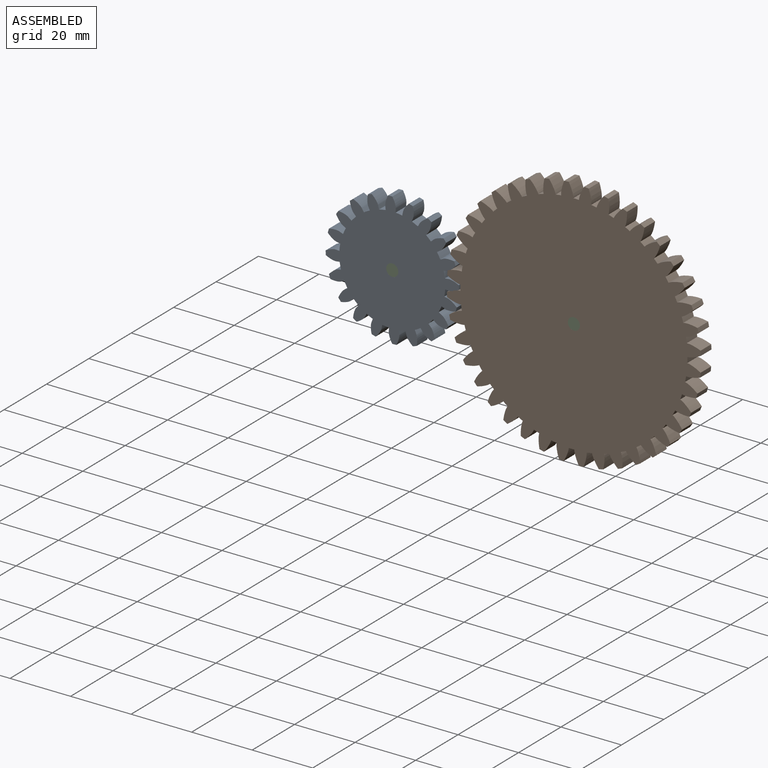
[diagram: assembled view]
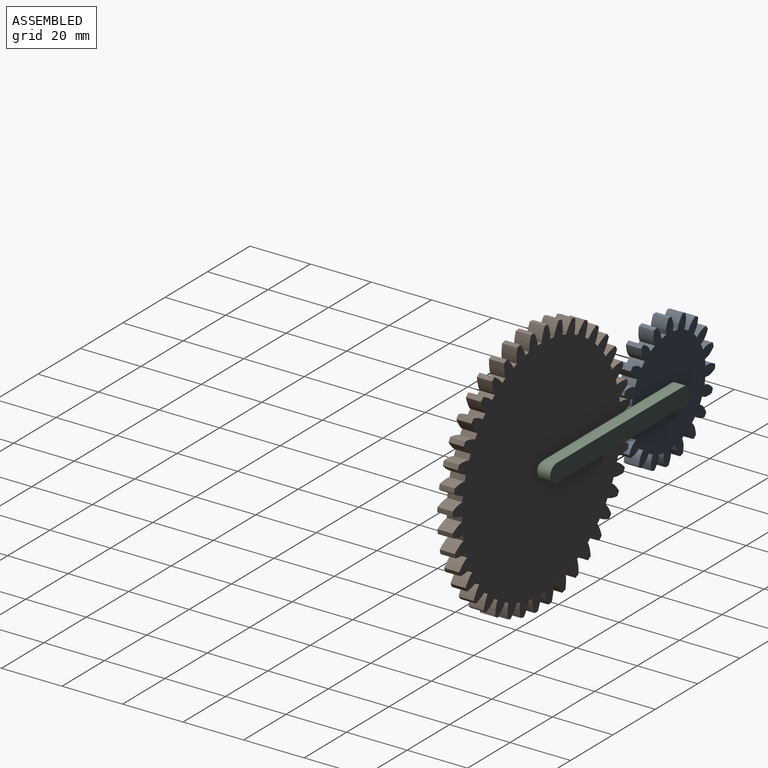
[diagram: assembled view, second angle]
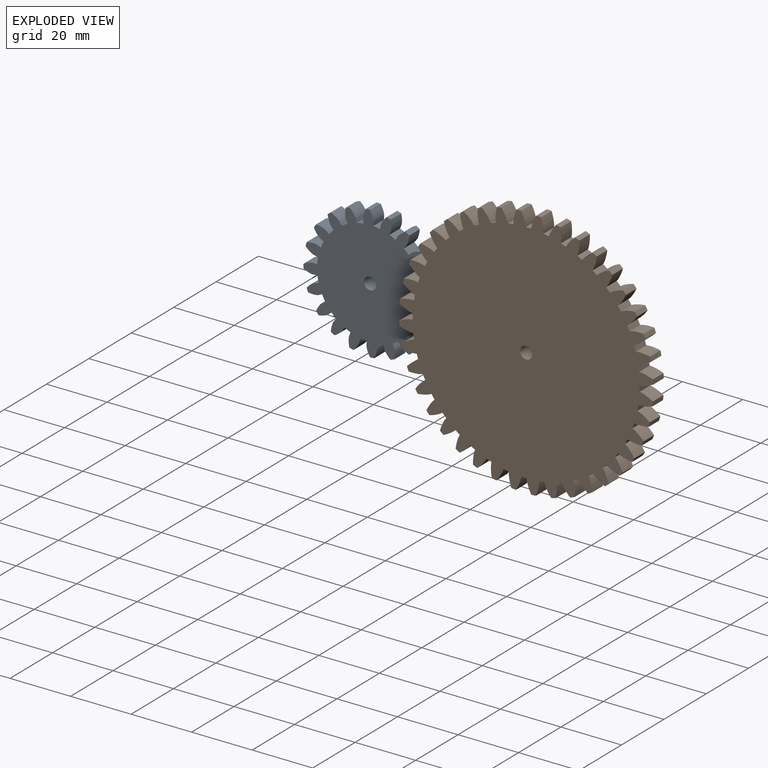
[diagram: exploded view]
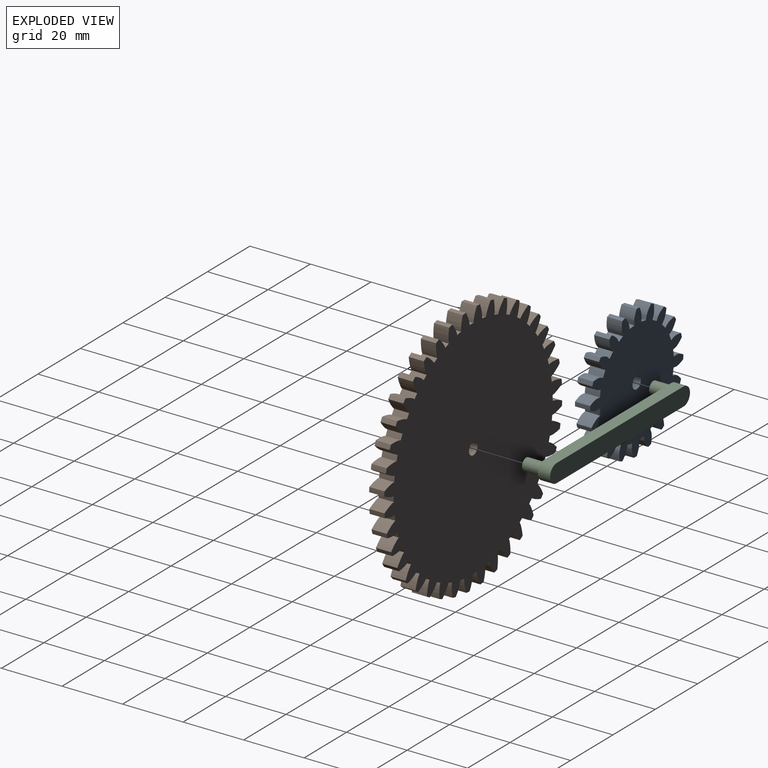
[diagram: exploded view, second angle]
ASSEMBLY  parts=3 mates=2
PART A: 83 faces, bbox 43.7x5x43.7 mm
  f0: cylinder r=22mm len=5mm, axis (0,1,0), area 6.9mm2, adj f21,f22,f50,f82
  f1: cylinder r=22mm len=5mm, axis (0,1,0), area 6.9mm2, adj f21,f22,f79,f80
  f2: cylinder r=22mm len=5mm, axis (0,1,0), area 6.9mm2, adj f21,f22,f71,f76
  f3: cylinder r=22mm len=5mm, axis (0,1,0), area 6.9mm2, adj f21,f22,f73,f77
  f4: cylinder r=22mm len=5mm, axis (0,1,0), area 6.9mm2, adj f21,f22,f65,f70
  f5: cylinder r=22mm len=5mm, axis (0,1,0), area 6.9mm2, adj f21,f22,f67,f74
  f6: cylinder r=22mm len=5mm, axis (0,1,0), area 6.9mm2, adj f21,f22,f64,f68
  f7: cylinder r=22mm len=5mm, axis (0,1,0), area 6.9mm2, adj f21,f22,f61,f62
  f8: cylinder r=22mm len=5mm, axis (0,1,0), area 6.9mm2, adj f21,f22,f38,f58
  f9: cylinder r=22mm len=5mm, axis (0,1,0), area 6.9mm2, adj f21,f22,f55,f56
  f10: cylinder r=22mm len=5mm, axis (0,1,0), area 6.9mm2, adj f21,f22,f47,f52
  f11: cylinder r=22mm len=5mm, axis (0,1,0), area 6.9mm2, adj f21,f22,f49,f53
  f12: cylinder r=22mm len=5mm, axis (0,1,0), area 6.9mm2, adj f21,f22,f41,f46
  f13: cylinder r=22mm len=5mm, axis (0,1,0), area 6.9mm2, adj f21,f22,f23,f43
  f14: cylinder r=22mm len=5mm, axis (0,1,0), area 6.9mm2, adj f21,f22,f35,f40
  f15: cylinder r=22mm len=5mm, axis (0,1,0), area 6.9mm2, adj f21,f22,f37,f44
  f16: cylinder r=22mm len=5mm, axis (0,1,0), area 6.9mm2, adj f21,f22,f26,f34
  f17: cylinder r=22mm len=5mm, axis (0,1,0), area 6.9mm2, adj f21,f22,f31,f59
  f18: cylinder r=22mm len=5mm, axis (0,1,0), area 6.9mm2, adj f21,f22,f28,f29
  f19: cylinder r=2mm len=5mm, axis (0,1,0), area 62.8mm2, adj f21,f22
  f20: cylinder r=22mm len=5mm, axis (0,1,0), area 6.9mm2, adj f21,f22,f25,f32
  f21: plane 43.74x43.74mm, normal (0,-1,0), area 1213.6mm2, adj f0,f1,f2,f3,f4,f5,f6,f7
  f22: plane 43.74x43.74mm, normal (0,1,0), area 1213.6mm2, adj f0,f1,f2,f3,f4,f5,f6,f7
  f23: extruded ~5x4.36mm, area 24mm2, adj f13,f21,f22,f24
  f24: cylinder r=17.5mm len=5mm, axis (0,1,0), area 11.1mm2, adj f21,f22,f23,f25
  f25: extruded ~5x4.36mm, area 24mm2, adj f20,f21,f22,f24
  f26: extruded ~5x4.49mm, area 24mm2, adj f16,f21,f22,f27
  f27: cylinder r=17.5mm len=5mm, axis (0,1,0), area 11.1mm2, adj f21,f22,f26,f28
  f28: extruded ~5x3.89mm, area 24mm2, adj f18,f21,f22,f27
  f29: extruded ~5x3.89mm, area 24mm2, adj f18,f21,f22,f30
  f30: cylinder r=17.5mm len=5mm, axis (0,1,0), area 11.1mm2, adj f21,f22,f29,f31
  f31: extruded ~5x4.49mm, area 24mm2, adj f17,f21,f22,f30
  f32: extruded ~5x4.66mm, area 24mm2, adj f20,f21,f22,f33
  f33: cylinder r=17.5mm len=5mm, axis (0,1,0), area 11.1mm2, adj f21,f22,f32,f34
  f34: extruded ~5x3.64mm, area 24mm2, adj f16,f21,f22,f33
  f35: extruded ~5x4.49mm, area 24mm2, adj f14,f21,f22,f36
  f36: cylinder r=17.5mm len=5mm, axis (0,1,0), area 11.1mm2, adj f21,f22,f35,f37
  f37: extruded ~5x3.89mm, area 24mm2, adj f15,f21,f22,f36
  f38: extruded ~5x4.66mm, area 24mm2, adj f8,f21,f22,f39
  f39: cylinder r=17.5mm len=5mm, axis (0,1,0), area 11.1mm2, adj f21,f22,f38,f40
  f40: extruded ~5x3.64mm, area 24mm2, adj f14,f21,f22,f39
  f41: extruded ~5x3.64mm, area 24mm2, adj f12,f21,f22,f42
  f42: cylinder r=17.5mm len=5mm, axis (0,1,0), area 11.1mm2, adj f21,f22,f41,f43
  f43: extruded ~5x4.66mm, area 24mm2, adj f13,f21,f22,f42
  f44: extruded ~5x3.89mm, area 24mm2, adj f15,f21,f22,f45
  f45: cylinder r=17.5mm len=5mm, axis (0,1,0), area 11.1mm2, adj f21,f22,f44,f46
  f46: extruded ~5x4.49mm, area 24mm2, adj f12,f21,f22,f45
  f47: extruded ~5x3.89mm, area 24mm2, adj f10,f21,f22,f48
  f48: cylinder r=17.5mm len=5mm, axis (0,1,0), area 11.1mm2, adj f21,f22,f47,f49
  f49: extruded ~5x4.49mm, area 24mm2, adj f11,f21,f22,f48
  f50: extruded ~5x4.49mm, area 24mm2, adj f0,f21,f22,f51
  f51: cylinder r=17.5mm len=5mm, axis (0,1,0), area 11.1mm2, adj f21,f22,f50,f52
  f52: extruded ~5x3.89mm, area 24mm2, adj f10,f21,f22,f51
  f53: extruded ~5x3.64mm, area 24mm2, adj f11,f21,f22,f54
  f54: cylinder r=17.5mm len=5mm, axis (0,1,0), area 11.1mm2, adj f21,f22,f53,f55
  f55: extruded ~5x4.66mm, area 24mm2, adj f9,f21,f22,f54
  f56: extruded ~5x4.36mm, area 24mm2, adj f9,f21,f22,f57
  f57: cylinder r=17.5mm len=5mm, axis (0,1,0), area 11.1mm2, adj f21,f22,f56,f58
  f58: extruded ~5x4.36mm, area 24mm2, adj f8,f21,f22,f57
  f59: extruded ~5x3.64mm, area 24mm2, adj f17,f21,f22,f60
  f60: cylinder r=17.5mm len=5mm, axis (0,1,0), area 11.1mm2, adj f21,f22,f59,f61
  f61: extruded ~5x4.66mm, area 24mm2, adj f7,f21,f22,f60
  f62: extruded ~5x4.36mm, area 24mm2, adj f7,f21,f22,f63
  f63: cylinder r=17.5mm len=5mm, axis (0,1,0), area 11.1mm2, adj f21,f22,f62,f64
  f64: extruded ~5x4.36mm, area 24mm2, adj f6,f21,f22,f63
  f65: extruded ~5x4.49mm, area 24mm2, adj f4,f21,f22,f66
  f66: cylinder r=17.5mm len=5mm, axis (0,1,0), area 11.1mm2, adj f21,f22,f65,f67
  f67: extruded ~5x3.89mm, area 24mm2, adj f5,f21,f22,f66
  f68: extruded ~5x4.66mm, area 24mm2, adj f6,f21,f22,f69
  f69: cylinder r=17.5mm len=5mm, axis (0,1,0), area 11.1mm2, adj f21,f22,f68,f70
  f70: extruded ~5x3.64mm, area 24mm2, adj f4,f21,f22,f69
  f71: extruded ~5x3.64mm, area 24mm2, adj f2,f21,f22,f72
  f72: cylinder r=17.5mm len=5mm, axis (0,1,0), area 11.1mm2, adj f21,f22,f71,f73
  f73: extruded ~5x4.66mm, area 24mm2, adj f3,f21,f22,f72
  f74: extruded ~5x3.89mm, area 24mm2, adj f5,f21,f22,f75
  f75: cylinder r=17.5mm len=5mm, axis (0,1,0), area 11.1mm2, adj f21,f22,f74,f76
  f76: extruded ~5x4.49mm, area 24mm2, adj f2,f21,f22,f75
  f77: extruded ~5x4.36mm, area 24mm2, adj f3,f21,f22,f78
  f78: cylinder r=17.5mm len=5mm, axis (0,1,0), area 11.1mm2, adj f21,f22,f77,f79
  f79: extruded ~5x4.36mm, area 24mm2, adj f1,f21,f22,f78
  f80: extruded ~5x4.66mm, area 24mm2, adj f1,f21,f22,f81
  f81: cylinder r=17.5mm len=5mm, axis (0,1,0), area 11.1mm2, adj f21,f22,f80,f82
  f82: extruded ~5x3.64mm, area 24mm2, adj f0,f21,f22,f81
PART B: 163 faces, bbox 83.8x5x83.8 mm
  f0: cylinder r=42mm len=5mm, axis (0,1,0), area 7.6mm2, adj f41,f42,f106,f162
  f1: cylinder r=42mm len=5mm, axis (0,1,0), area 7.6mm2, adj f41,f42,f159,f160
  f2: cylinder r=42mm len=5mm, axis (0,1,0), area 7.6mm2, adj f41,f42,f156,f157
  f3: cylinder r=42mm len=5mm, axis (0,1,0), area 7.6mm2, adj f41,f42,f153,f154
  f4: cylinder r=42mm len=5mm, axis (0,1,0), area 7.6mm2, adj f41,f42,f150,f151
  f5: cylinder r=42mm len=5mm, axis (0,1,0), area 7.6mm2, adj f41,f42,f147,f148
  f6: cylinder r=42mm len=5mm, axis (0,1,0), area 7.6mm2, adj f41,f42,f139,f144
  f7: cylinder r=42mm len=5mm, axis (0,1,0), area 7.6mm2, adj f41,f42,f141,f145
  f8: cylinder r=42mm len=5mm, axis (0,1,0), area 7.6mm2, adj f41,f42,f133,f138
  f9: cylinder r=42mm len=5mm, axis (0,1,0), area 7.6mm2, adj f41,f42,f127,f135
  f10: cylinder r=42mm len=5mm, axis (0,1,0), area 7.6mm2, adj f41,f42,f132,f142
  f11: cylinder r=42mm len=5mm, axis (0,1,0), area 7.6mm2, adj f41,f42,f129,f130
  f12: cylinder r=42mm len=5mm, axis (0,1,0), area 7.6mm2, adj f41,f42,f126,f136
  f13: cylinder r=42mm len=5mm, axis (0,1,0), area 7.6mm2, adj f41,f42,f123,f124
  f14: cylinder r=42mm len=5mm, axis (0,1,0), area 7.6mm2, adj f41,f42,f120,f121
  f15: cylinder r=42mm len=5mm, axis (0,1,0), area 7.6mm2, adj f41,f42,f117,f118
  f16: cylinder r=42mm len=5mm, axis (0,1,0), area 7.6mm2, adj f41,f42,f109,f114
  f17: cylinder r=42mm len=5mm, axis (0,1,0), area 7.6mm2, adj f41,f42,f100,f111
  f18: cylinder r=42mm len=5mm, axis (0,1,0), area 7.6mm2, adj f41,f42,f103,f108
  f19: cylinder r=42mm len=5mm, axis (0,1,0), area 7.6mm2, adj f41,f42,f105,f112
  f20: cylinder r=42mm len=5mm, axis (0,1,0), area 7.6mm2, adj f41,f42,f97,f102
  f21: cylinder r=42mm len=5mm, axis (0,1,0), area 7.6mm2, adj f41,f42,f94,f99
  f22: cylinder r=42mm len=5mm, axis (0,1,0), area 7.6mm2, adj f41,f42,f91,f96
  f23: cylinder r=42mm len=5mm, axis (0,1,0), area 7.6mm2, adj f41,f42,f76,f93
  f24: cylinder r=42mm len=5mm, axis (0,1,0), area 7.6mm2, adj f41,f42,f43,f90
  f25: cylinder r=42mm len=5mm, axis (0,1,0), area 7.6mm2, adj f41,f42,f87,f88
  f26: cylinder r=42mm len=5mm, axis (0,1,0), area 7.6mm2, adj f41,f42,f79,f84
  f27: cylinder r=42mm len=5mm, axis (0,1,0), area 7.6mm2, adj f41,f42,f81,f85
  f28: cylinder r=42mm len=5mm, axis (0,1,0), area 7.6mm2, adj f41,f42,f73,f78
  f29: cylinder r=42mm len=5mm, axis (0,1,0), area 7.6mm2, adj f41,f42,f67,f75
  f30: cylinder r=42mm len=5mm, axis (0,1,0), area 7.6mm2, adj f41,f42,f72,f82
  f31: cylinder r=42mm len=5mm, axis (0,1,0), area 7.6mm2, adj f41,f42,f69,f70
  f32: cylinder r=42mm len=5mm, axis (0,1,0), area 7.6mm2, adj f41,f42,f61,f66
  f33: cylinder r=42mm len=5mm, axis (0,1,0), area 7.6mm2, adj f41,f42,f58,f63
  f34: cylinder r=42mm len=5mm, axis (0,1,0), area 7.6mm2, adj f41,f42,f49,f60
  f35: cylinder r=42mm len=5mm, axis (0,1,0), area 7.6mm2, adj f41,f42,f52,f57
  f36: cylinder r=42mm len=5mm, axis (0,1,0), area 7.6mm2, adj f41,f42,f54,f115
  f37: cylinder r=42mm len=5mm, axis (0,1,0), area 7.6mm2, adj f41,f42,f46,f51
  f38: cylinder r=42mm len=5mm, axis (0,1,0), area 7.6mm2, adj f41,f42,f48,f55
  f39: cylinder r=2mm len=5mm, axis (0,1,0), area 62.8mm2, adj f41,f42
  f40: cylinder r=42mm len=5mm, axis (0,1,0), area 7.6mm2, adj f41,f42,f45,f64
  f41: plane 83.85x83.85mm, normal (0,-1,0), area 4970.1mm2, adj f0,f1,f2,f3,f4,f5,f6,f7
  f42: plane 83.85x83.85mm, normal (0,1,0), area 4970.1mm2, adj f0,f1,f2,f3,f4,f5,f6,f7
  f43: extruded ~5x4.43mm, area 23.8mm2, adj f24,f41,f42,f44
  f44: cylinder r=37.5mm len=5mm, axis (0,1,0), area 9.1mm2, adj f41,f42,f43,f45
  f45: extruded ~5x4.43mm, area 23.8mm2, adj f40,f41,f42,f44
  f46: extruded ~5x4.28mm, area 23.8mm2, adj f37,f41,f42,f47
  f47: cylinder r=37.5mm len=5mm, axis (0,1,0), area 9.1mm2, adj f41,f42,f46,f48
  f48: extruded ~5x4.28mm, area 23.8mm2, adj f38,f41,f42,f47
  f49: extruded ~5x4.54mm, area 23.8mm2, adj f34,f41,f42,f50
  f50: cylinder r=37.5mm len=5mm, axis (0,1,0), area 9.1mm2, adj f41,f42,f49,f51
  f51: extruded ~5x3.92mm, area 23.8mm2, adj f37,f41,f42,f50
  f52: extruded ~5x3.46mm, area 23.8mm2, adj f35,f41,f42,f53
  f53: cylinder r=37.5mm len=5mm, axis (0,1,0), area 9.1mm2, adj f41,f42,f52,f54
  f54: extruded ~5x4.69mm, area 23.8mm2, adj f36,f41,f42,f53
  f55: extruded ~5x3.92mm, area 23.8mm2, adj f38,f41,f42,f56
  f56: cylinder r=37.5mm len=5mm, axis (0,1,0), area 9.1mm2, adj f41,f42,f55,f57
  f57: extruded ~5x4.54mm, area 23.8mm2, adj f35,f41,f42,f56
  f58: extruded ~5x4.69mm, area 23.8mm2, adj f33,f41,f42,f59
  f59: cylinder r=37.5mm len=5mm, axis (0,1,0), area 9.1mm2, adj f41,f42,f58,f60
  f60: extruded ~5x3.46mm, area 23.8mm2, adj f34,f41,f42,f59
  f61: extruded ~5x4.72mm, area 23.8mm2, adj f32,f41,f42,f62
  f62: cylinder r=37.5mm len=5mm, axis (0,1,0), area 9.1mm2, adj f41,f42,f61,f63
  f63: extruded ~5x3.72mm, area 23.8mm2, adj f33,f41,f42,f62
  f64: extruded ~5x4.63mm, area 23.8mm2, adj f40,f41,f42,f65
  f65: cylinder r=37.5mm len=5mm, axis (0,1,0), area 9.1mm2, adj f41,f42,f64,f66
  f66: extruded ~5x4.13mm, area 23.8mm2, adj f32,f41,f42,f65
  f67: extruded ~5x4.54mm, area 23.8mm2, adj f29,f41,f42,f68
  f68: cylinder r=37.5mm len=5mm, axis (0,1,0), area 9.1mm2, adj f41,f42,f67,f69
  f69: extruded ~5x3.92mm, area 23.8mm2, adj f31,f41,f42,f68
  f70: extruded ~5x4.28mm, area 23.8mm2, adj f31,f41,f42,f71
  f71: cylinder r=37.5mm len=5mm, axis (0,1,0), area 9.1mm2, adj f41,f42,f70,f72
  f72: extruded ~5x4.28mm, area 23.8mm2, adj f30,f41,f42,f71
  f73: extruded ~5x4.69mm, area 23.8mm2, adj f28,f41,f42,f74
  f74: cylinder r=37.5mm len=5mm, axis (0,1,0), area 9.1mm2, adj f41,f42,f73,f75
  f75: extruded ~5x3.46mm, area 23.8mm2, adj f29,f41,f42,f74
  f76: extruded ~5x4.72mm, area 23.8mm2, adj f23,f41,f42,f77
  f77: cylinder r=37.5mm len=5mm, axis (0,1,0), area 9.1mm2, adj f41,f42,f76,f78
  f78: extruded ~5x3.72mm, area 23.8mm2, adj f28,f41,f42,f77
  f79: extruded ~5x3.46mm, area 23.8mm2, adj f26,f41,f42,f80
  f80: cylinder r=37.5mm len=5mm, axis (0,1,0), area 9.1mm2, adj f41,f42,f79,f81
  f81: extruded ~5x4.69mm, area 23.8mm2, adj f27,f41,f42,f80
  f82: extruded ~5x3.92mm, area 23.8mm2, adj f30,f41,f42,f83
  f83: cylinder r=37.5mm len=5mm, axis (0,1,0), area 9.1mm2, adj f41,f42,f82,f84
  f84: extruded ~5x4.54mm, area 23.8mm2, adj f26,f41,f42,f83
  f85: extruded ~5x3.72mm, area 23.8mm2, adj f27,f41,f42,f86
  f86: cylinder r=37.5mm len=5mm, axis (0,1,0), area 9.1mm2, adj f41,f42,f85,f87
  f87: extruded ~5x4.72mm, area 23.8mm2, adj f25,f41,f42,f86
  f88: extruded ~5x4.13mm, area 23.8mm2, adj f25,f41,f42,f89
  f89: cylinder r=37.5mm len=5mm, axis (0,1,0), area 9.1mm2, adj f41,f42,f88,f90
  f90: extruded ~5x4.63mm, area 23.8mm2, adj f24,f41,f42,f89
  f91: extruded ~5x4.63mm, area 23.8mm2, adj f22,f41,f42,f92
  f92: cylinder r=37.5mm len=5mm, axis (0,1,0), area 9.1mm2, adj f41,f42,f91,f93
  f93: extruded ~5x4.13mm, area 23.8mm2, adj f23,f41,f42,f92
  f94: extruded ~5x4.43mm, area 23.8mm2, adj f21,f41,f42,f95
  f95: cylinder r=37.5mm len=5mm, axis (0,1,0), area 9.1mm2, adj f41,f42,f94,f96
  f96: extruded ~5x4.43mm, area 23.8mm2, adj f22,f41,f42,f95
  f97: extruded ~5x4.13mm, area 23.8mm2, adj f20,f41,f42,f98
  f98: cylinder r=37.5mm len=5mm, axis (0,1,0), area 9.1mm2, adj f41,f42,f97,f99
  f99: extruded ~5x4.63mm, area 23.8mm2, adj f21,f41,f42,f98
  f100: extruded ~5x3.72mm, area 23.8mm2, adj f17,f41,f42,f101
  f101: cylinder r=37.5mm len=5mm, axis (0,1,0), area 9.1mm2, adj f41,f42,f100,f102
  f102: extruded ~5x4.72mm, area 23.8mm2, adj f20,f41,f42,f101
  f103: extruded ~5x4.28mm, area 23.8mm2, adj f18,f41,f42,f104
  f104: cylinder r=37.5mm len=5mm, axis (0,1,0), area 9.1mm2, adj f41,f42,f103,f105
  f105: extruded ~5x4.28mm, area 23.8mm2, adj f19,f41,f42,f104
  f106: extruded ~5x4.54mm, area 23.8mm2, adj f0,f41,f42,f107
  f107: cylinder r=37.5mm len=5mm, axis (0,1,0), area 9.1mm2, adj f41,f42,f106,f108
  f108: extruded ~5x3.92mm, area 23.8mm2, adj f18,f41,f42,f107
  f109: extruded ~5x3.46mm, area 23.8mm2, adj f16,f41,f42,f110
  f110: cylinder r=37.5mm len=5mm, axis (0,1,0), area 9.1mm2, adj f41,f42,f109,f111
  f111: extruded ~5x4.69mm, area 23.8mm2, adj f17,f41,f42,f110
  f112: extruded ~5x3.92mm, area 23.8mm2, adj f19,f41,f42,f113
  f113: cylinder r=37.5mm len=5mm, axis (0,1,0), area 9.1mm2, adj f41,f42,f112,f114
  f114: extruded ~5x4.54mm, area 23.8mm2, adj f16,f41,f42,f113
  f115: extruded ~5x3.72mm, area 23.8mm2, adj f36,f41,f42,f116
  f116: cylinder r=37.5mm len=5mm, axis (0,1,0), area 9.1mm2, adj f41,f42,f115,f117
  f117: extruded ~5x4.72mm, area 23.8mm2, adj f15,f41,f42,f116
  f118: extruded ~5x4.13mm, area 23.8mm2, adj f15,f41,f42,f119
  f119: cylinder r=37.5mm len=5mm, axis (0,1,0), area 9.1mm2, adj f41,f42,f118,f120
  f120: extruded ~5x4.63mm, area 23.8mm2, adj f14,f41,f42,f119
  f121: extruded ~5x4.43mm, area 23.8mm2, adj f14,f41,f42,f122
  f122: cylinder r=37.5mm len=5mm, axis (0,1,0), area 9.1mm2, adj f41,f42,f121,f123
  f123: extruded ~5x4.43mm, area 23.8mm2, adj f13,f41,f42,f122
  f124: extruded ~5x4.63mm, area 23.8mm2, adj f13,f41,f42,f125
  f125: cylinder r=37.5mm len=5mm, axis (0,1,0), area 9.1mm2, adj f41,f42,f124,f126
  f126: extruded ~5x4.13mm, area 23.8mm2, adj f12,f41,f42,f125
  f127: extruded ~5x4.54mm, area 23.8mm2, adj f9,f41,f42,f128
  f128: cylinder r=37.5mm len=5mm, axis (0,1,0), area 9.1mm2, adj f41,f42,f127,f129
  f129: extruded ~5x3.92mm, area 23.8mm2, adj f11,f41,f42,f128
  f130: extruded ~5x4.28mm, area 23.8mm2, adj f11,f41,f42,f131
  f131: cylinder r=37.5mm len=5mm, axis (0,1,0), area 9.1mm2, adj f41,f42,f130,f132
  f132: extruded ~5x4.28mm, area 23.8mm2, adj f10,f41,f42,f131
  f133: extruded ~5x4.69mm, area 23.8mm2, adj f8,f41,f42,f134
  f134: cylinder r=37.5mm len=5mm, axis (0,1,0), area 9.1mm2, adj f41,f42,f133,f135
  f135: extruded ~5x3.46mm, area 23.8mm2, adj f9,f41,f42,f134
  f136: extruded ~5x4.72mm, area 23.8mm2, adj f12,f41,f42,f137
  f137: cylinder r=37.5mm len=5mm, axis (0,1,0), area 9.1mm2, adj f41,f42,f136,f138
  f138: extruded ~5x3.72mm, area 23.8mm2, adj f8,f41,f42,f137
  f139: extruded ~5x3.46mm, area 23.8mm2, adj f6,f41,f42,f140
  f140: cylinder r=37.5mm len=5mm, axis (0,1,0), area 9.1mm2, adj f41,f42,f139,f141
  f141: extruded ~5x4.69mm, area 23.8mm2, adj f7,f41,f42,f140
  f142: extruded ~5x3.92mm, area 23.8mm2, adj f10,f41,f42,f143
  f143: cylinder r=37.5mm len=5mm, axis (0,1,0), area 9.1mm2, adj f41,f42,f142,f144
  f144: extruded ~5x4.54mm, area 23.8mm2, adj f6,f41,f42,f143
  f145: extruded ~5x3.72mm, area 23.8mm2, adj f7,f41,f42,f146
  f146: cylinder r=37.5mm len=5mm, axis (0,1,0), area 9.1mm2, adj f41,f42,f145,f147
  f147: extruded ~5x4.72mm, area 23.8mm2, adj f5,f41,f42,f146
  f148: extruded ~5x4.13mm, area 23.8mm2, adj f5,f41,f42,f149
  f149: cylinder r=37.5mm len=5mm, axis (0,1,0), area 9.1mm2, adj f41,f42,f148,f150
  f150: extruded ~5x4.63mm, area 23.8mm2, adj f4,f41,f42,f149
  f151: extruded ~5x4.43mm, area 23.8mm2, adj f4,f41,f42,f152
  f152: cylinder r=37.5mm len=5mm, axis (0,1,0), area 9.1mm2, adj f41,f42,f151,f153
  f153: extruded ~5x4.43mm, area 23.8mm2, adj f3,f41,f42,f152
  f154: extruded ~5x4.63mm, area 23.8mm2, adj f3,f41,f42,f155
  f155: cylinder r=37.5mm len=5mm, axis (0,1,0), area 9.1mm2, adj f41,f42,f154,f156
  f156: extruded ~5x4.13mm, area 23.8mm2, adj f2,f41,f42,f155
  f157: extruded ~5x4.72mm, area 23.8mm2, adj f2,f41,f42,f158
  f158: cylinder r=37.5mm len=5mm, axis (0,1,0), area 9.1mm2, adj f41,f42,f157,f159
  f159: extruded ~5x3.72mm, area 23.8mm2, adj f1,f41,f42,f158
  f160: extruded ~5x4.69mm, area 23.8mm2, adj f1,f41,f42,f161
  f161: cylinder r=37.5mm len=5mm, axis (0,1,0), area 9.1mm2, adj f41,f42,f160,f162
  f162: extruded ~5x3.46mm, area 23.8mm2, adj f0,f41,f42,f161
PART C: 10 faces, bbox 66x10x6 mm
  f0: cylinder r=3mm len=6mm, axis (0,1,0), area 37.9mm2, adj f1,f3,f4,f5
  f1: plane 60x4mm, normal (0,0,-1), area 240mm2, adj f0,f2,f4,f5
  f2: cylinder r=3mm len=6mm, axis (0,1,0), area 37.7mm2, adj f1,f3,f4,f5
  f3: plane 59.94x4mm, normal (0,0,1), area 239.8mm2, adj f0,f2,f4,f5
  f4: plane 66x6mm, normal (0,-1,0), area 363.1mm2, adj f0,f1,f2,f3,f6,f8
  f5: plane 66x6mm, normal (0,1,0), area 388.3mm2, adj f0,f1,f2,f3
  f6: cylinder r=2mm len=6mm, axis (0,1,0), area 75.4mm2, adj f4,f7
  f7: plane 4x4mm, normal (0,-1,0), area 12.6mm2, adj f6
  f8: cylinder r=2mm len=6mm, axis (0,1,0), area 75.4mm2, adj f4,f9
  f9: plane 4x4mm, normal (0,-1,0), area 12.6mm2, adj f8
PLACE A rot(axis=(0,1,0),79.2deg) t=(20.28,0.79,-46.43)mm
PLACE B rot(axis=(0,1,0),37.2deg) t=(50.04,0.79,26.4)mm
PLACE C t=(39.2,5.79,11.87)mm fixed
MATE revolute A.f0 <-> C.f6  axis (0,-1,0) through (9.2,-4.21,11.87)mm
MATE revolute B.f0 <-> C.f8  axis (0,-1,0) through (69.2,-4.21,11.87)mm
